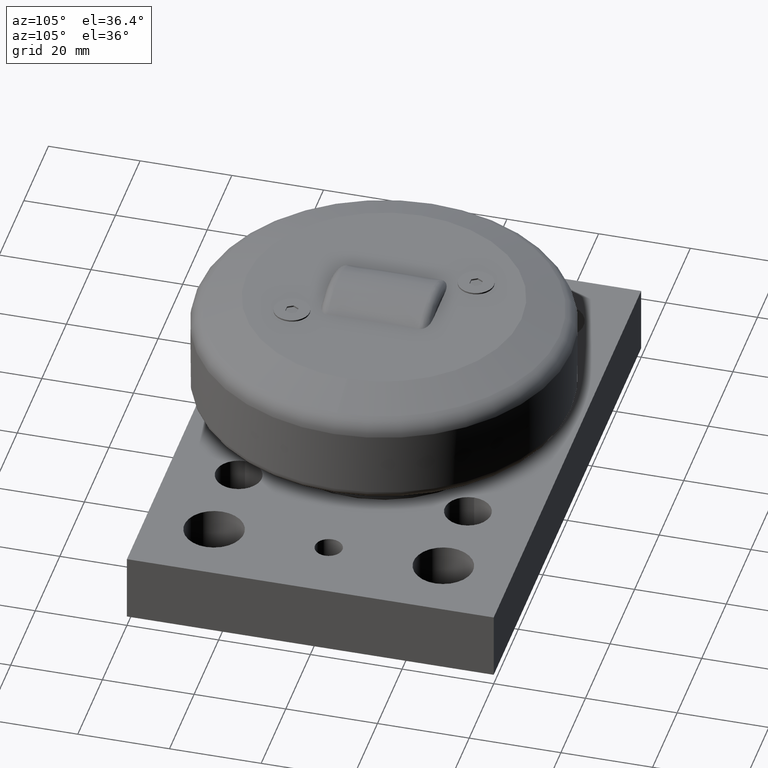
[diagram: clean part render]
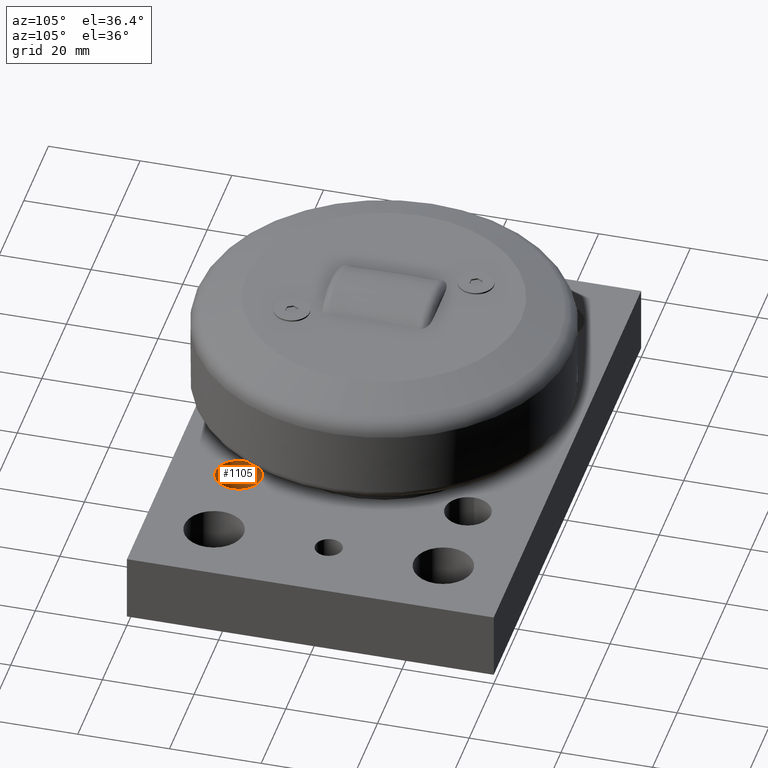
[diagram: same view with one face highlighted and labeled with its STEP entity id]
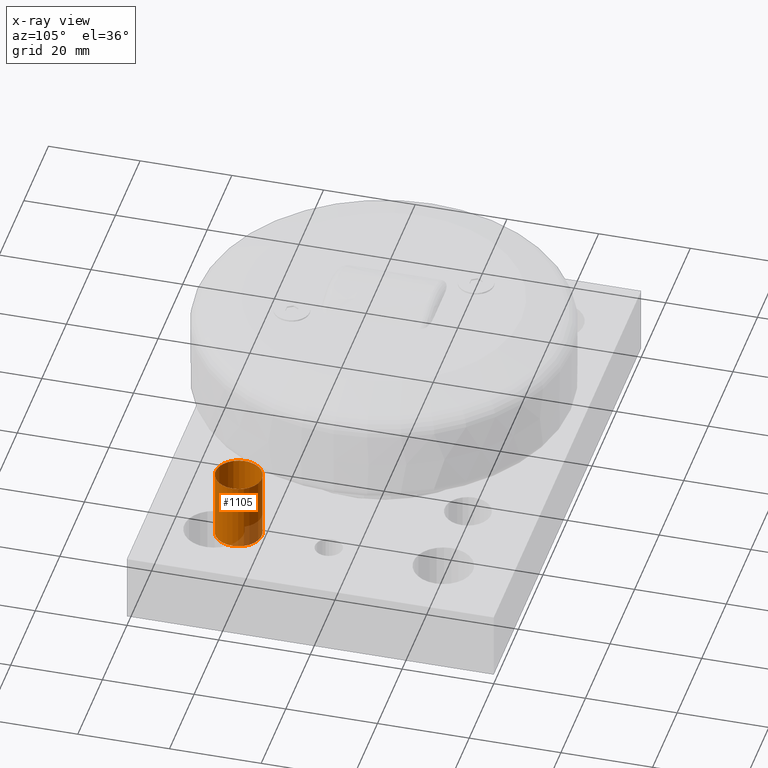
[diagram: x-ray of the same camera — body ghosted, the highlighted face saturated]
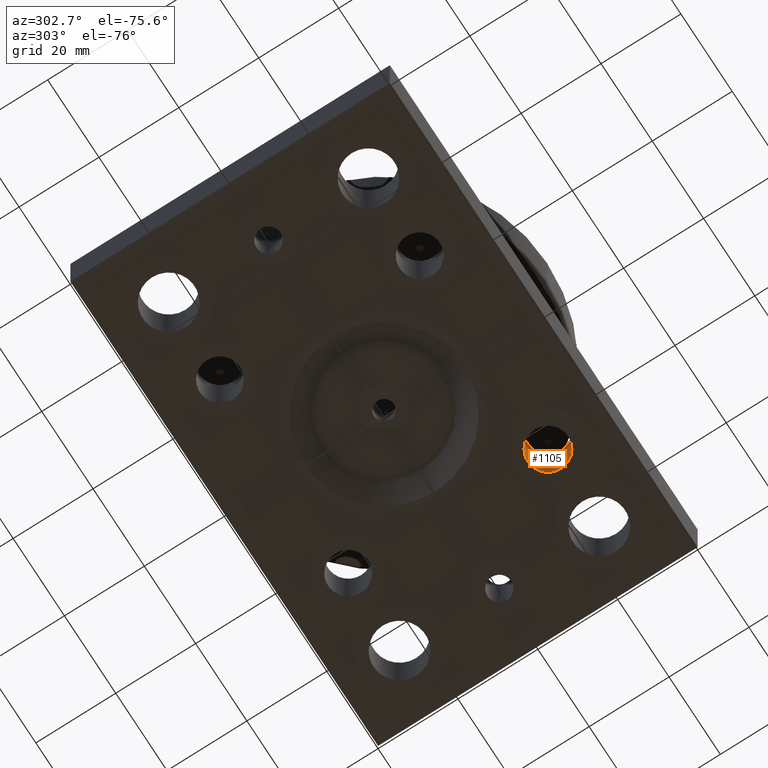
[diagram: same view with one face highlighted and labeled with its STEP entity id]
A machine part, auxiliary view. The second image highlights one B-rep face of the part: STEP entity #1105.
The next image is the same camera in x-ray: the body ghosted, the highlighted face saturated — about 12% of this face is hidden behind the body in this view.
A second angle (auxiliary view) of the same face is appended — the face is thin or edge-on in the first view.
In plain terms, the highlighted cylindrical surface (bore or boss wall) has radius 5.053 mm, axis along (0, 0, 1).
Its self-contained STEP definition (entity closure, byte-faithful):
#85=CIRCLE('',#1186,5.053);
#86=CIRCLE('',#1187,5.053);
#98=CIRCLE('',#1200,5.053);
#148=CYLINDRICAL_SURFACE('',#1221,5.053);
#189=FACE_OUTER_BOUND('',#276,.T.);
#276=EDGE_LOOP('',(#905,#906,#907,#908,#909));
#367=LINE('',#1876,#442);
#442=VECTOR('',#1484,5.053);
#506=VERTEX_POINT('',#1798);
#507=VERTEX_POINT('',#1799);
#523=VERTEX_POINT('',#1833);
#631=EDGE_CURVE('',#506,#507,#85,.T.);
#632=EDGE_CURVE('',#507,#506,#86,.T.);
#648=EDGE_CURVE('',#523,#523,#98,.T.);
#669=EDGE_CURVE('',#507,#523,#367,.T.);
#905=ORIENTED_EDGE('',*,*,#631,.F.);
#906=ORIENTED_EDGE('',*,*,#632,.F.);
#907=ORIENTED_EDGE('',*,*,#669,.T.);
#908=ORIENTED_EDGE('',*,*,#648,.F.);
#909=ORIENTED_EDGE('',*,*,#669,.F.);
#1105=ADVANCED_FACE('',(#189),#148,.F.);
#1186=AXIS2_PLACEMENT_3D('',#1800,#1396,#1397);
#1187=AXIS2_PLACEMENT_3D('',#1801,#1398,#1399);
#1200=AXIS2_PLACEMENT_3D('',#1834,#1428,#1429);
#1221=AXIS2_PLACEMENT_3D('',#1875,#1482,#1483);
#1396=DIRECTION('center_axis',(0.,0.,-1.));
#1397=DIRECTION('ref_axis',(1.,0.,0.));
#1398=DIRECTION('center_axis',(0.,0.,-1.));
#1399=DIRECTION('ref_axis',(1.,0.,0.));
#1428=DIRECTION('center_axis',(0.,0.,1.));
#1429=DIRECTION('ref_axis',(1.,0.,0.));
#1482=DIRECTION('center_axis',(0.,0.,1.));
#1483=DIRECTION('ref_axis',(1.,0.,0.));
#1484=DIRECTION('',(0.,0.,-1.));
#1798=CARTESIAN_POINT('',(90.053,15.,15.));
#1799=CARTESIAN_POINT('',(79.947,15.,15.));
#1800=CARTESIAN_POINT('Origin',(85.,15.,15.));
#1801=CARTESIAN_POINT('Origin',(85.,15.,15.));
#1833=CARTESIAN_POINT('',(79.947,15.,0.));
#1834=CARTESIAN_POINT('Origin',(85.,15.,0.));
#1875=CARTESIAN_POINT('Origin',(85.,15.,-130.));
#1876=CARTESIAN_POINT('',(79.947,15.,-130.));